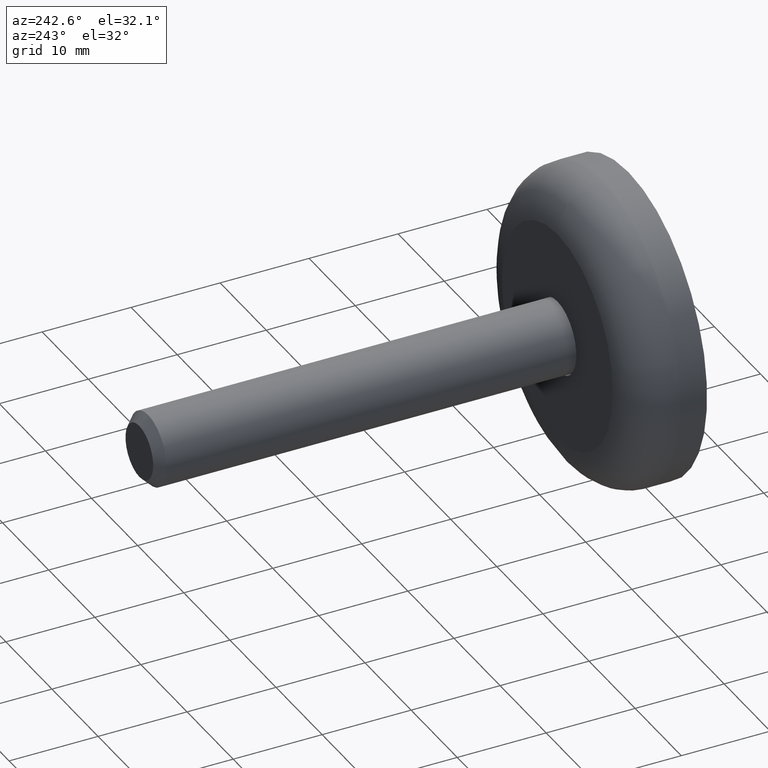
[diagram: clean part render]
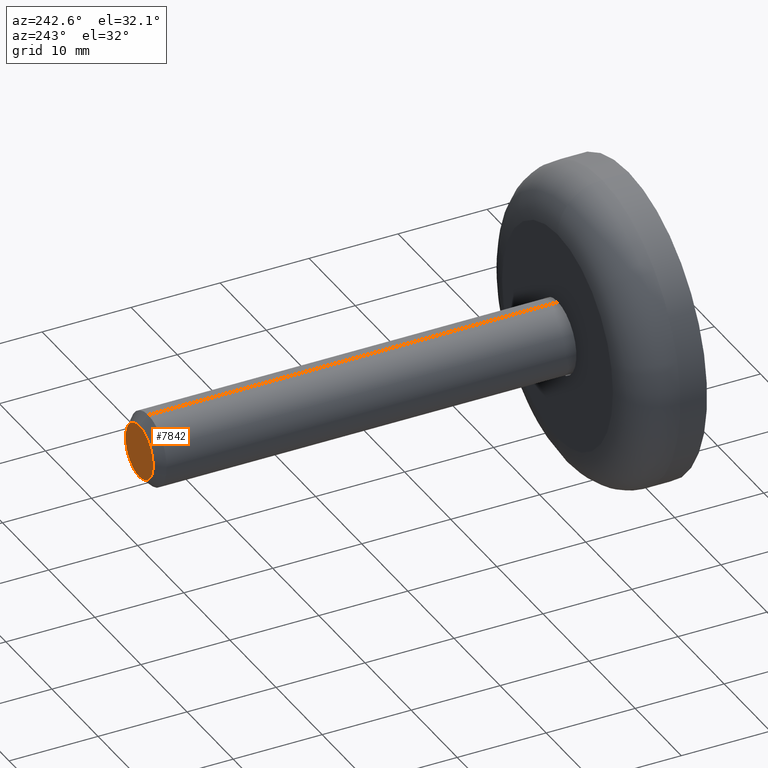
[diagram: same view with one face highlighted and labeled with its STEP entity id]
A machine part, auxiliary view. The second image highlights one B-rep face of the part: STEP entity #7842.
In plain terms, the highlighted planar face has unit normal (0, 1, 0).
Its self-contained STEP definition (entity closure, byte-faithful):
#984 = EDGE_LOOP ( 'NONE', ( #1863, #2702 ) ) ;
#1123 = AXIS2_PLACEMENT_3D ( 'NONE', #4239, #7682, #3297 ) ;
#1863 = ORIENTED_EDGE ( 'NONE', *, *, #4431, .T. ) ;
#2313 = CARTESIAN_POINT ( 'NONE',  ( 0.000000000000000000, 55.00000000000000000, 0.000000000000000000 ) ) ;
#2702 = ORIENTED_EDGE ( 'NONE', *, *, #5435, .T. ) ;
#3113 = CARTESIAN_POINT ( 'NONE',  ( 0.000000000000000000, 55.00000000000000000, 0.000000000000000000 ) ) ;
#3297 = DIRECTION ( 'NONE',  ( 0.000000000000000000, 0.000000000000000000, 1.000000000000000000 ) ) ;
#4239 = CARTESIAN_POINT ( 'NONE',  ( 0.000000000000000000, 55.00000000000000000, 0.000000000000000000 ) ) ;
#4431 = EDGE_CURVE ( 'NONE', #5241, #5628, #12642, .T. ) ;
#4859 = DIRECTION ( 'NONE',  ( 0.000000000000000000, -0.000000000000000000, 1.000000000000000000 ) ) ;
#5241 = VERTEX_POINT ( 'NONE', #14664 ) ;
#5435 = EDGE_CURVE ( 'NONE', #5628, #5241, #5643, .T. ) ;
#5628 = VERTEX_POINT ( 'NONE', #14613 ) ;
#5643 = CIRCLE ( 'NONE', #1123, 2.999999999999981792 ) ;
#5916 = DIRECTION ( 'NONE',  ( 0.000000000000000000, 1.000000000000000000, 0.000000000000000000 ) ) ;
#6764 = DIRECTION ( 'NONE',  ( 0.000000000000000000, 1.000000000000000000, 0.000000000000000000 ) ) ;
#7682 = DIRECTION ( 'NONE',  ( 0.000000000000000000, 1.000000000000000000, 0.000000000000000000 ) ) ;
#7842 = ADVANCED_FACE ( 'NONE', ( #9608 ), #15572, .T. ) ;
#7929 = DIRECTION ( 'NONE',  ( 0.000000000000000000, 0.000000000000000000, 1.000000000000000000 ) ) ;
#9608 = FACE_OUTER_BOUND ( 'NONE', #984, .T. ) ;
#10439 = AXIS2_PLACEMENT_3D ( 'NONE', #3113, #6764, #7929 ) ;
#12642 = CIRCLE ( 'NONE', #10439, 2.999999999999981792 ) ;
#14119 = AXIS2_PLACEMENT_3D ( 'NONE', #2313, #5916, #4859 ) ;
#14613 = CARTESIAN_POINT ( 'NONE',  ( 4.286263797015727720E-16, 55.00000000000000000, 2.999999999999981792 ) ) ;
#14664 = CARTESIAN_POINT ( 'NONE',  ( 0.000000000000000000, 55.00000000000000000, -2.999999999999981792 ) ) ;
#15572 = PLANE ( 'NONE',  #14119 ) ;